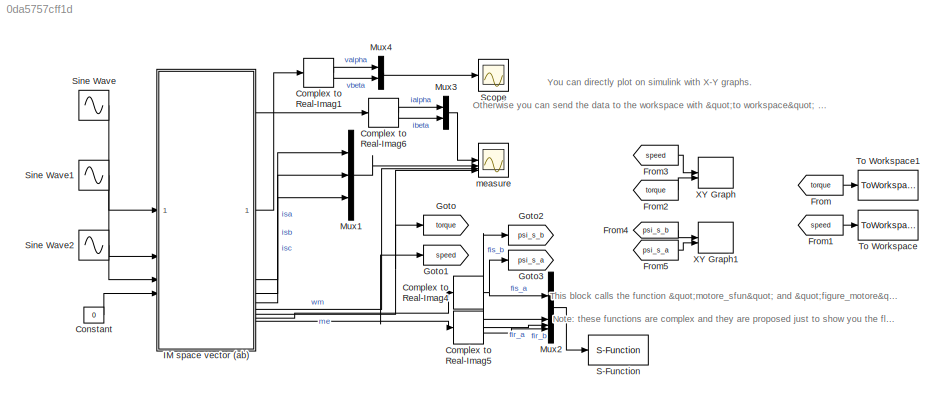
MODEL slx_0da5757cff1d
KIND model
CONFIG AbsTol = auto
CONFIG EnableMultiTasking = on
CONFIG FixedStep = auto
CONFIG MaxStep = 1e-3
CONFIG MinStep = auto
CONFIG RelTol = 1e-3
CONFIG SampleTimeConstraint = Unconstrained
CONFIG SolverName = ode23s
CONFIG StartTime = 0.0
CONFIG StopTime = 0.8
BLOCK [ComplexToRealImag] Complex to Real-Imag1
BLOCK [ComplexToRealImag] Complex to Real-Imag4
BLOCK [ComplexToRealImag] Complex to Real-Imag5
BLOCK [ComplexToRealImag] Complex to Real-Imag6
BLOCK [Constant] Constant
  Value = 0
BLOCK [From] From
  GotoTag = torque
BLOCK [From] From1
  GotoTag = speed
BLOCK [From] From2
  GotoTag = torque
BLOCK [From] From3
  GotoTag = speed
BLOCK [From] From4
  GotoTag = psi_s_b
BLOCK [From] From5
  GotoTag = psi_s_a
BLOCK [Goto] Goto
  GotoTag = torque
BLOCK [Goto] Goto1
  GotoTag = speed
BLOCK [Goto] Goto2
  GotoTag = psi_s_b
BLOCK [Goto] Goto3
  GotoTag = psi_s_a
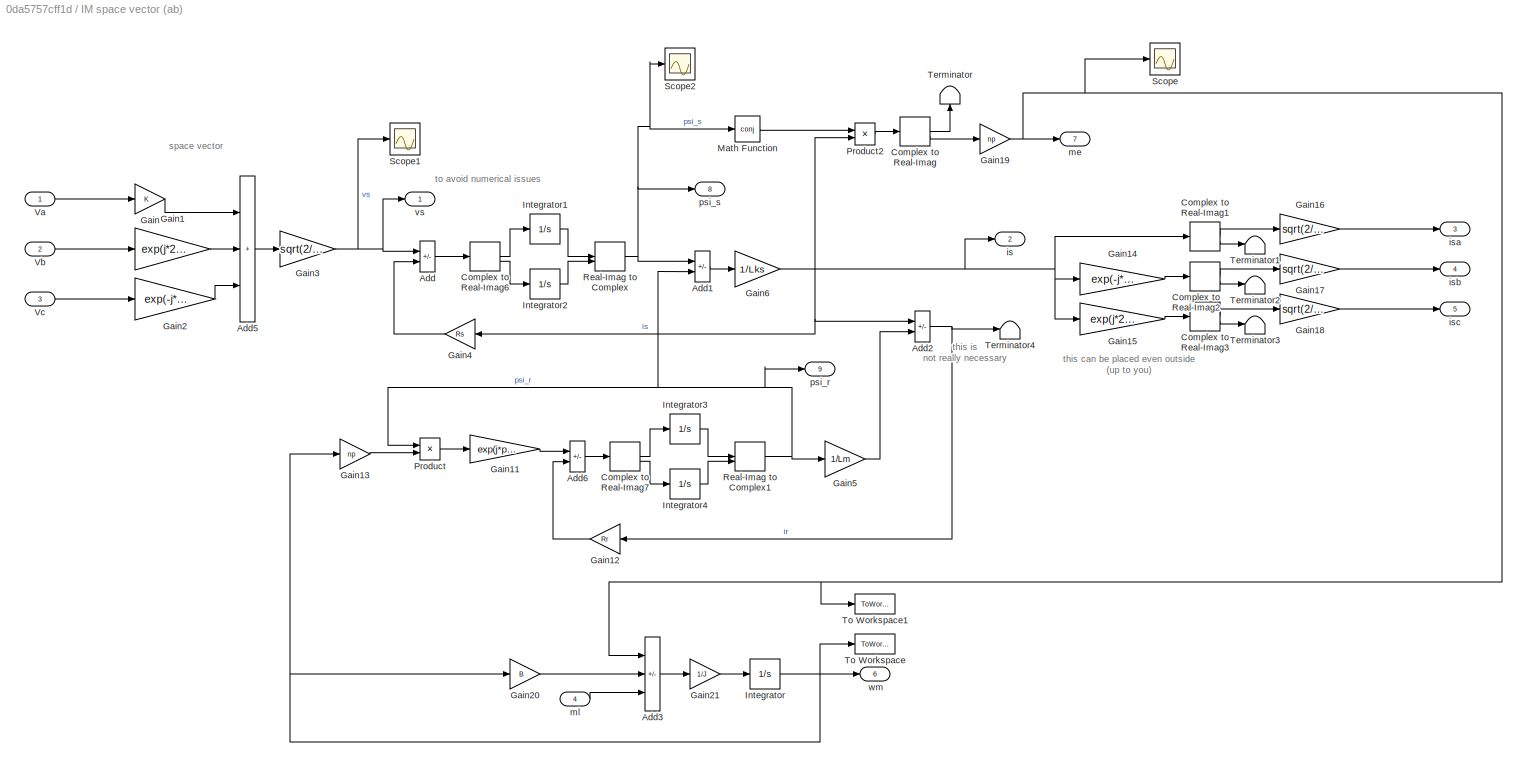
BLOCK [SubSystem] IM space vector (ab)
BLOCK [Sum] IM space vector (ab)/Add
  IconShape = rectangular
  Inputs = +-
BLOCK [Sum] IM space vector (ab)/Add1
  IconShape = rectangular
  Inputs = +-
BLOCK [Sum] IM space vector (ab)/Add2
  IconShape = rectangular
  Inputs = -+
BLOCK [Sum] IM space vector (ab)/Add3
  IconShape = rectangular
  Inputs = +--
BLOCK [Sum] IM space vector (ab)/Add5
  IconShape = rectangular
  Inputs = +++
BLOCK [Sum] IM space vector (ab)/Add6
  IconShape = rectangular
  Inputs = +-
BLOCK [ComplexToRealImag] IM space vector (ab)/Complex to Real-Imag
BLOCK [ComplexToRealImag] IM space vector (ab)/Complex to Real-Imag1
BLOCK [ComplexToRealImag] IM space vector (ab)/Complex to Real-Imag2
BLOCK [ComplexToRealImag] IM space vector (ab)/Complex to Real-Imag3
BLOCK [ComplexToRealImag] IM space vector (ab)/Complex to Real-Imag6
BLOCK [ComplexToRealImag] IM space vector (ab)/Complex to Real-Imag7
BLOCK [Gain] IM space vector (ab)/Gain
BLOCK [Gain] IM space vector (ab)/Gain1
  Gain = exp(j*2*pi/3)
BLOCK [Gain] IM space vector (ab)/Gain11
  Gain = exp(j*pi/2)
BLOCK [Gain] IM space vector (ab)/Gain12
  Gain = Rr
  NameLocation = top
BLOCK [Gain] IM space vector (ab)/Gain13
  Gain = np
BLOCK [Gain] IM space vector (ab)/Gain14
  Gain = exp(-j*2*pi/3)
BLOCK [Gain] IM space vector (ab)/Gain15
  Gain = exp(j*2*pi/3)
BLOCK [Gain] IM space vector (ab)/Gain16
  Gain = sqrt(2/3)
BLOCK [Gain] IM space vector (ab)/Gain17
  Gain = sqrt(2/3)
BLOCK [Gain] IM space vector (ab)/Gain18
  Gain = sqrt(2/3)
BLOCK [Gain] IM space vector (ab)/Gain19
  Gain = np
BLOCK [Gain] IM space vector (ab)/Gain2
  Gain = exp(-j*2*pi/3)
BLOCK [Gain] IM space vector (ab)/Gain20
  Gain = B
BLOCK [Gain] IM space vector (ab)/Gain21
  Gain = 1/J
BLOCK [Gain] IM space vector (ab)/Gain3
  Gain = sqrt(2/3)
BLOCK [Gain] IM space vector (ab)/Gain4
  Gain = Rs
  NameLocation = top
BLOCK [Gain] IM space vector (ab)/Gain5
  Gain = 1/Lm
BLOCK [Gain] IM space vector (ab)/Gain6
  Gain = 1/Lks
BLOCK [Integrator] IM space vector (ab)/Integrator
BLOCK [Integrator] IM space vector (ab)/Integrator1
BLOCK [Integrator] IM space vector (ab)/Integrator2
BLOCK [Integrator] IM space vector (ab)/Integrator3
BLOCK [Integrator] IM space vector (ab)/Integrator4
BLOCK [Math] IM space vector (ab)/Math Function
  Operator = conj
  SignedPower = on
BLOCK [Product] IM space vector (ab)/Product
BLOCK [Product] IM space vector (ab)/Product2
BLOCK [RealImagToComplex] IM space vector (ab)/Real-Imag to Complex
BLOCK [RealImagToComplex] IM space vector (ab)/Real-Imag to Complex1
BLOCK [Scope] IM space vector (ab)/Scope
  Floating = off
  NumInputPorts = 1
  ScopeSpecificationString = Simulink.scopes.TimeScopeBlockCfg
BLOCK [Scope] IM space vector (ab)/Scope1
  Floating = off
  NumInputPorts = 1
  ScopeSpecificationString = Simulink.scopes.TimeScopeBlockCfg
BLOCK [Scope] IM space vector (ab)/Scope2
  Floating = off
  NumInputPorts = 1
  ScopeSpecificationString = Simulink.scopes.TimeScopeBlockCfg
BLOCK [Terminator] IM space vector (ab)/Terminator
  NameLocation = right
BLOCK [Terminator] IM space vector (ab)/Terminator1
BLOCK [Terminator] IM space vector (ab)/Terminator2
BLOCK [Terminator] IM space vector (ab)/Terminator3
BLOCK [Terminator] IM space vector (ab)/Terminator4
BLOCK [ToWorkspace] IM space vector (ab)/To Workspace
  FixptAsFi = on
  MaxDataPoints = inf
  SampleTime = -1
  VariableName = wm
BLOCK [ToWorkspace] IM space vector (ab)/To Workspace1
  FixptAsFi = on
  MaxDataPoints = inf
  SampleTime = -1
  VariableName = me
BLOCK [Inport] IM space vector (ab)/Va
BLOCK [Inport] IM space vector (ab)/Vb
  Port = 2
BLOCK [Inport] IM space vector (ab)/Vc
  Port = 3
BLOCK [Outport] IM space vector (ab)/is
  Port = 2
  VectorParamsAs1DForOutWhenUnconnected = off
BLOCK [Outport] IM space vector (ab)/isa
  Port = 3
  VectorParamsAs1DForOutWhenUnconnected = off
BLOCK [Outport] IM space vector (ab)/isb
  Port = 4
  VectorParamsAs1DForOutWhenUnconnected = off
BLOCK [Outport] IM space vector (ab)/isc
  Port = 5
  VectorParamsAs1DForOutWhenUnconnected = off
BLOCK [Outport] IM space vector (ab)/me
  Port = 7
  VectorParamsAs1DForOutWhenUnconnected = off
BLOCK [Inport] IM space vector (ab)/ml
  Port = 4
BLOCK [Outport] IM space vector (ab)/psi_r
  Port = 9
  VectorParamsAs1DForOutWhenUnconnected = off
BLOCK [Outport] IM space vector (ab)/psi_s
  NameLocation = top
  Port = 8
  VectorParamsAs1DForOutWhenUnconnected = off
BLOCK [Outport] IM space vector (ab)/vs
  VectorParamsAs1DForOutWhenUnconnected = off
BLOCK [Outport] IM space vector (ab)/wm
  Port = 6
  VectorParamsAs1DForOutWhenUnconnected = off
BLOCK [Mux] Mux1
  DisplayOption = bar
  Inputs = 3
BLOCK [Mux] Mux2
  DisplayOption = bar
BLOCK [Mux] Mux3
  DisplayOption = bar
  Inputs = 2
BLOCK [Mux] Mux4
  DisplayOption = bar
  Inputs = 2
BLOCK [S-Function] S-Function
  EnableBusSupport = off
  FunctionName = motore_sfun
  OpenFcn = figure_motore
  SFcnIsStateOwnerBlock = off
  SFunctionDeploymentMode = off
BLOCK [Scope] Scope
  Floating = off
  NumInputPorts = 1
  ScopeSpecificationString = Simulink.scopes.TimeScopeBlockCfg('CurrentConfiguration', extmgr.ConfigurationSet(extmgr.Configuration('Core','General UI',true),extmgr.Configuration('Core','Source UI',true),extmgr.Configuration('Sources','WiredSimulink',true,'DataLoggingVariableName','ScopeData1'),extmgr.Configuration('Visuals','Time Domain',true),extmgr.Configuration('Tools','Plot Navigation',true),extmgr.Configuration('Tools',...<+40ch>
BLOCK [Sin] Sine Wave
  Amplitude = 380*sqrt(2)
  Frequency = 2*pi*50
  SampleTime = 0
BLOCK [Sin] Sine Wave1
  Amplitude = 380*sqrt(2)
  Frequency = 2*pi*50
  Phase = -2*pi/3
  SampleTime = 0
BLOCK [Sin] Sine Wave2
  Amplitude = 380*sqrt(2)
  Frequency = 2*pi*50
  Phase = -4*pi/3
  SampleTime = 0
BLOCK [ToWorkspace] To Workspace
  FixptAsFi = on
  MaxDataPoints = inf
  SampleTime = -1
  VariableName = speed
BLOCK [ToWorkspace] To Workspace1
  FixptAsFi = on
  MaxDataPoints = inf
  SampleTime = -1
  VariableName = torque
BLOCK [Record] XY Graph
  CompatibilityTag = XY
  FileSettingsInternal = {"entries":[{"content":{"excelSettings":{"content":{},"type":"Streamout.ExcelSettings"}},"type":"Streamout.FileSettingStorage","uuid":"4af16882-2086-40a6-94ab-f8150837ffa8"}],"packageUris":["http://schema.mathworks.com/mf0/streamout_blocks/R2020a"],"version":"1.0"}
  Layout = [1 1]
  SignalsInternal = {"entries":[{"content":{"signals":[{"content":{"blockPath":["IM_model/XY Graph"],"channel":[],"dimensions":[1],"domain":"IM_model/XY Graph","lineColor":"#a2142f","plots":[1],"port":1,"sid":[""],"signalID":2525,"signalName":"From3"},"type":"RecordBlkView.Signal","uuid":"a5c80903-c1c6-48d7-9634-96254d246ccd"},{"content":{"blockPath":["IM_model/XY Graph"],"channel":[],"dimensions":[1],"domain":"IM_mo...<+359ch>
  VisualizationBindings = {"xyplotplugin":{"info":[{"series":[{"bindingParametersList":[{"parameter":"X-Axis","signalID":2525,"signalName":"From3"},{"parameter":"Y-Axis","signalID":2529,"signalName":"From2"}],"seriesID":51756}],"subplotID":1}]}}
BLOCK [Record] XY Graph1
  CompatibilityTag = XY
  FileSettingsInternal = {"entries":[{"content":{"excelSettings":{"content":{},"type":"Streamout.ExcelSettings"}},"type":"Streamout.FileSettingStorage","uuid":"43a2d26a-f79d-41d1-ad3e-8586555017c5"}],"packageUris":["http://schema.mathworks.com/mf0/streamout_blocks/R2020a"],"version":"1.0"}
  Layout = [1 1]
  SignalsInternal = {"entries":[{"content":{"signals":[{"content":{"blockPath":["IM_model/XY Graph1"],"channel":[],"dimensions":[1],"domain":"IM_model/XY Graph1","lineColor":"#a2142f","plots":[1],"port":1,"sid":[""],"signalID":2533,"signalName":"From4"},"type":"RecordBlkView.Signal","uuid":"26a16e83-51c8-495f-92a0-de0a5ec67a35"},{"content":{"blockPath":["IM_model/XY Graph1"],"channel":[],"dimensions":[1],"domain":"IM...<+363ch>
  VisualizationBindings = {"xyplotplugin":{"info":[{"series":[{"bindingParametersList":[{"parameter":"X-Axis","signalID":2533,"signalName":"From4"},{"parameter":"Y-Axis","signalID":2537,"signalName":"From5"}],"seriesID":18533}],"subplotID":1}]}}
BLOCK [Scope] measure
  Floating = off
  NameLocation = top
  NumInputPorts = 4
  ScopeSpecificationString = Simulink.scopes.TimeScopeBlockCfg('CurrentConfiguration', extmgr.ConfigurationSet(extmgr.Configuration('Core','General UI',true),extmgr.Configuration('Core','Source UI',true),extmgr.Configuration('Sources','WiredSimulink',true,'DataLoggingSaveFormat','Array','DataLoggingDecimation','1','DataLoggingDecimateData',true,'DataLoggingVariableName','ScopeData6'),extmgr.Configuration('Visuals','Time Domai...<+3728ch>
ANNOTATION (root): This block calls the function "motore_sfun" and "figure_motore". The scripts of these functions must be placed in the same directory of the the simulink. Otherwise you can copy them and put them at the end of IM_parameters script (see how matlab function works for other details). Note: these functions are complex and they are proposed just to show you the flux beahviour. Click on the block and run...<+36ch>
ANNOTATION (root): You can directly plot on simulink with X-Y graphs. Otherwise you can send the data to the workspace with "to workspace" blocks
ANNOTATION IM space vector (ab): space vector
ANNOTATION IM space vector (ab): this can be placed even outside (up to you)
ANNOTATION IM space vector (ab): this is not really necessary
ANNOTATION IM space vector (ab): to avoid numerical issues
LINE Complex to Real-Imag1:1 -> Mux4:1
LINE Complex to Real-Imag1:2 -> Mux4:2
NET Complex to Real-Imag4:1 -> Goto3:1, Mux2:1
NET Complex to Real-Imag4:2 -> Goto2:1, Mux2:2
LINE Complex to Real-Imag5:1 -> Mux2:3
LINE Complex to Real-Imag5:2 -> Mux2:4
LINE Complex to Real-Imag6:1 -> Mux3:1
LINE Complex to Real-Imag6:2 -> Mux3:2
LINE Constant:1 -> IM space vector (ab):4
LINE From1:1 -> To Workspace:1
LINE From2:1 -> XY Graph:2
LINE From3:1 -> XY Graph:1
LINE From4:1 -> XY Graph1:1
LINE From5:1 -> XY Graph1:2
LINE From:1 -> To Workspace1:1
LINE IM space vector (ab)/Add1:1 -> IM space vector (ab)/Gain6:1
NET IM space vector (ab)/Add2:1 -> IM space vector (ab)/Gain12:1, IM space vector (ab)/Terminator4:1
LINE IM space vector (ab)/Add3:1 -> IM space vector (ab)/Gain21:1
LINE IM space vector (ab)/Add5:1 -> IM space vector (ab)/Gain3:1
LINE IM space vector (ab)/Add6:1 -> IM space vector (ab)/Complex to Real-Imag7:1
LINE IM space vector (ab)/Add:1 -> IM space vector (ab)/Complex to Real-Imag6:1
LINE IM space vector (ab)/Complex to Real-Imag1:1 -> IM space vector (ab)/Gain16:1
LINE IM space vector (ab)/Complex to Real-Imag1:2 -> IM space vector (ab)/Terminator1:1
LINE IM space vector (ab)/Complex to Real-Imag2:1 -> IM space vector (ab)/Gain17:1
LINE IM space vector (ab)/Complex to Real-Imag2:2 -> IM space vector (ab)/Terminator2:1
LINE IM space vector (ab)/Complex to Real-Imag3:1 -> IM space vector (ab)/Gain18:1
LINE IM space vector (ab)/Complex to Real-Imag3:2 -> IM space vector (ab)/Terminator3:1
LINE IM space vector (ab)/Complex to Real-Imag6:1 -> IM space vector (ab)/Integrator1:1
LINE IM space vector (ab)/Complex to Real-Imag6:2 -> IM space vector (ab)/Integrator2:1
LINE IM space vector (ab)/Complex to Real-Imag7:1 -> IM space vector (ab)/Integrator3:1
LINE IM space vector (ab)/Complex to Real-Imag7:2 -> IM space vector (ab)/Integrator4:1
LINE IM space vector (ab)/Complex to Real-Imag:1 -> IM space vector (ab)/Terminator:1
LINE IM space vector (ab)/Complex to Real-Imag:2 -> IM space vector (ab)/Gain19:1
LINE IM space vector (ab)/Gain11:1 -> IM space vector (ab)/Add6:1
LINE IM space vector (ab)/Gain12:1 -> IM space vector (ab)/Add6:2
LINE IM space vector (ab)/Gain13:1 -> IM space vector (ab)/Product:2
LINE IM space vector (ab)/Gain14:1 -> IM space vector (ab)/Complex to Real-Imag2:1
LINE IM space vector (ab)/Gain15:1 -> IM space vector (ab)/Complex to Real-Imag3:1
LINE IM space vector (ab)/Gain16:1 -> IM space vector (ab)/isa:1
LINE IM space vector (ab)/Gain17:1 -> IM space vector (ab)/isb:1
LINE IM space vector (ab)/Gain18:1 -> IM space vector (ab)/isc:1
NET IM space vector (ab)/Gain19:1 -> IM space vector (ab)/Add3:1, IM space vector (ab)/Scope:1, IM space vector (ab)/To Workspace1:1, IM space vector (ab)/me:1
LINE IM space vector (ab)/Gain1:1 -> IM space vector (ab)/Add5:2
LINE IM space vector (ab)/Gain20:1 -> IM space vector (ab)/Add3:2
LINE IM space vector (ab)/Gain21:1 -> IM space vector (ab)/Integrator:1
LINE IM space vector (ab)/Gain2:1 -> IM space vector (ab)/Add5:3
NET IM space vector (ab)/Gain3:1 -> IM space vector (ab)/Add:1, IM space vector (ab)/Scope1:1, IM space vector (ab)/vs:1
LINE IM space vector (ab)/Gain4:1 -> IM space vector (ab)/Add:2
LINE IM space vector (ab)/Gain5:1 -> IM space vector (ab)/Add2:2
NET IM space vector (ab)/Gain6:1 -> IM space vector (ab)/Add2:1, IM space vector (ab)/Complex to Real-Imag1:1, IM space vector (ab)/Gain14:1, IM space vector (ab)/Gain15:1, IM space vector (ab)/Gain4:1, IM space vector (ab)/Product2:2, IM space vector (ab)/is:1
LINE IM space vector (ab)/Gain:1 -> IM space vector (ab)/Add5:1
LINE IM space vector (ab)/Integrator1:1 -> IM space vector (ab)/Real-Imag to Complex:1
LINE IM space vector (ab)/Integrator2:1 -> IM space vector (ab)/Real-Imag to Complex:2
LINE IM space vector (ab)/Integrator3:1 -> IM space vector (ab)/Real-Imag to Complex1:1
LINE IM space vector (ab)/Integrator4:1 -> IM space vector (ab)/Real-Imag to Complex1:2
NET IM space vector (ab)/Integrator:1 -> IM space vector (ab)/Gain13:1, IM space vector (ab)/Gain20:1, IM space vector (ab)/To Workspace:1, IM space vector (ab)/wm:1
LINE IM space vector (ab)/Math Function:1 -> IM space vector (ab)/Product2:1
LINE IM space vector (ab)/Product2:1 -> IM space vector (ab)/Complex to Real-Imag:1
LINE IM space vector (ab)/Product:1 -> IM space vector (ab)/Gain11:1
NET IM space vector (ab)/Real-Imag to Complex1:1 -> IM space vector (ab)/Add1:2, IM space vector (ab)/Gain5:1, IM space vector (ab)/Product:1, IM space vector (ab)/psi_r:1
NET IM space vector (ab)/Real-Imag to Complex:1 -> IM space vector (ab)/Add1:1, IM space vector (ab)/Math Function:1, IM space vector (ab)/Scope2:1, IM space vector (ab)/psi_s:1
LINE IM space vector (ab)/Va:1 -> IM space vector (ab)/Gain:1
LINE IM space vector (ab)/Vb:1 -> IM space vector (ab)/Gain1:1
LINE IM space vector (ab)/Vc:1 -> IM space vector (ab)/Gain2:1
LINE IM space vector (ab)/ml:1 -> IM space vector (ab)/Add3:3
LINE IM space vector (ab):1 -> Complex to Real-Imag1:1
LINE IM space vector (ab):2 -> Complex to Real-Imag6:1
LINE IM space vector (ab):3 -> Mux1:1
LINE IM space vector (ab):4 -> Mux1:2
LINE IM space vector (ab):5 -> Mux1:3
NET IM space vector (ab):6 -> Goto1:1, measure:3
NET IM space vector (ab):7 -> Goto:1, measure:4
LINE IM space vector (ab):8 -> Complex to Real-Imag4:1
LINE IM space vector (ab):9 -> Complex to Real-Imag5:1
LINE Mux1:1 -> measure:2
LINE Mux2:1 -> S-Function:1
LINE Mux3:1 -> measure:1
LINE Mux4:1 -> Scope:1
LINE Sine Wave1:1 -> IM space vector (ab):2
LINE Sine Wave2:1 -> IM space vector (ab):3
LINE Sine Wave:1 -> IM space vector (ab):1
note: NET lines group one-source signal fan-out (src -> all destinations, sorted); 1:1 wires keep LINE
